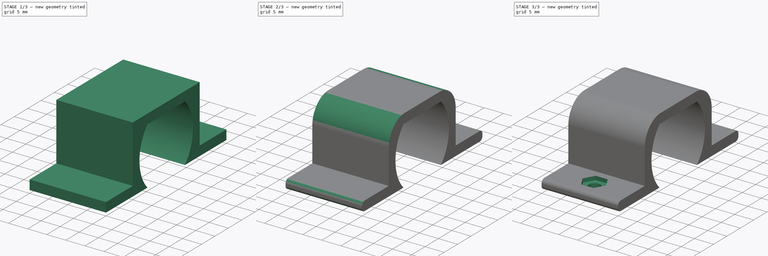
[diagram: build sequence overview — one tinted view per stage of 3, left to right]
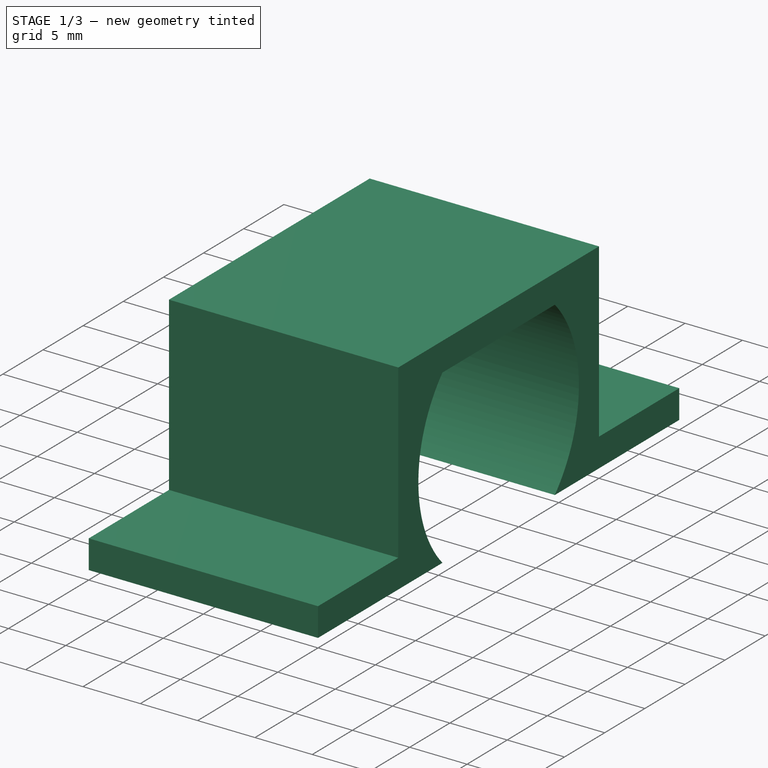
[diagram: stage 1 of 3 — iso view after this stage's code; geometry added in this stage tinted green]
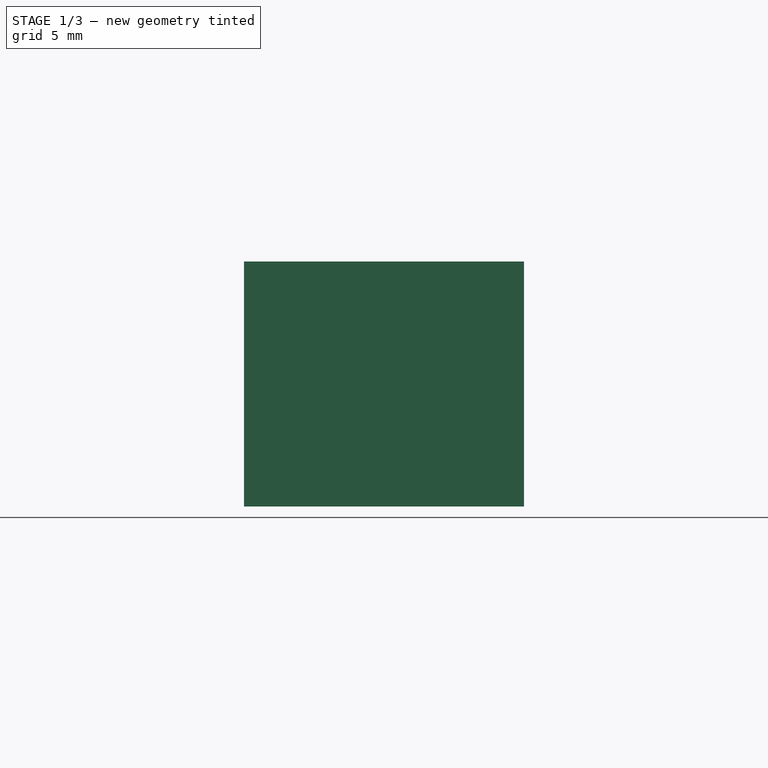
[diagram: stage 1 of 3 — front view after this stage's code; geometry added in this stage tinted green]
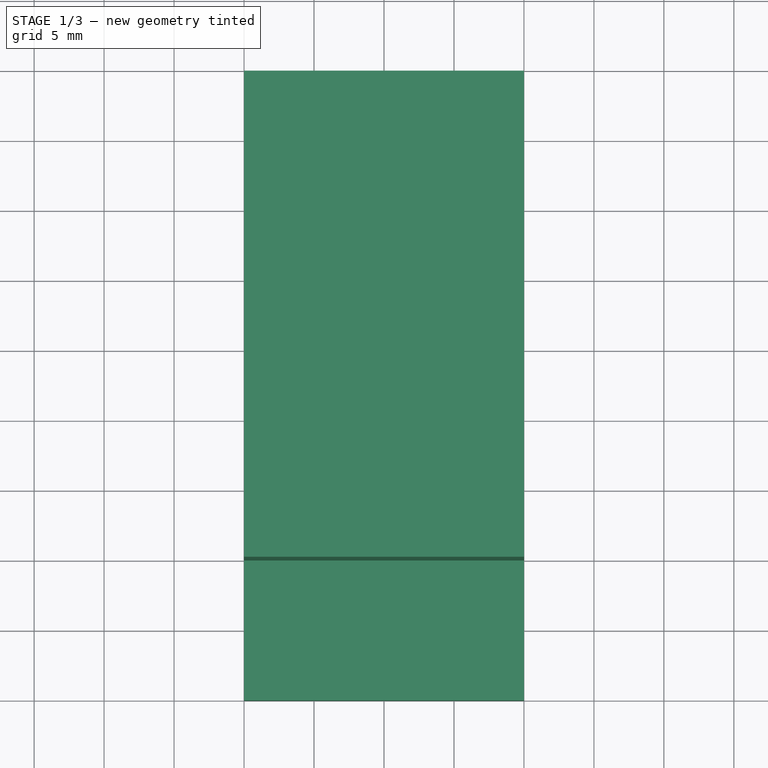
[diagram: stage 1 of 3 — top view after this stage's code; geometry added in this stage tinted green]
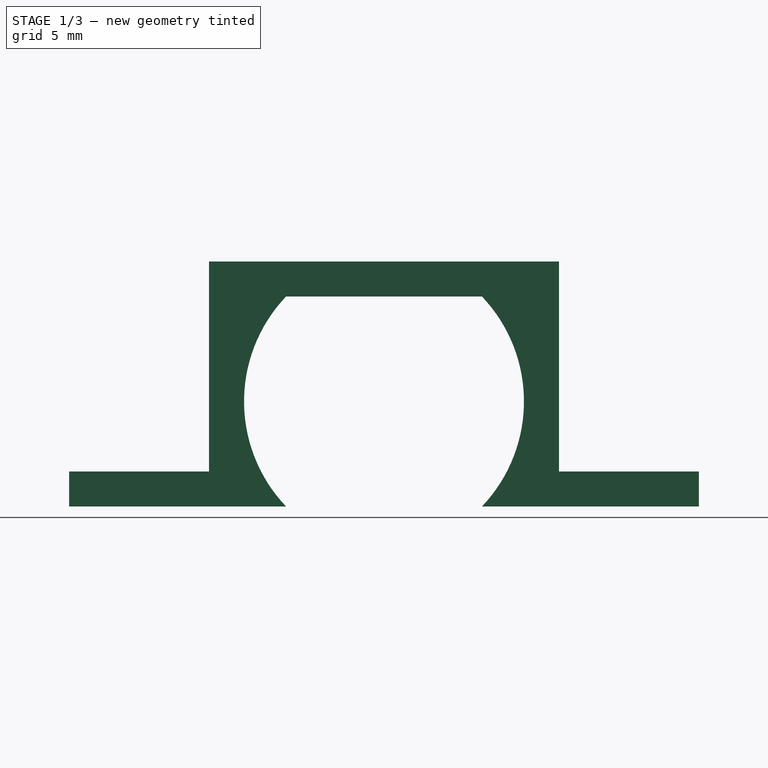
[diagram: stage 1 of 3 — right view after this stage's code; geometry added in this stage tinted green]
FCSTD DOCUMENT  (FreeCAD 1.0R39109 (Git))
Label: Ausweerfmotor-Befestigung
License: All rights reserved
LicenseURL: https://en.wikipedia.org/wiki/All_rights_reserved
objects: Sketcher::SketchObject×4, PartDesign::Pocket×3, PartDesign::Fillet×2, PartDesign::Pad×1, PartDesign::Body×1
note: 27 computed .brp shape members not serialized (recipe doc carries the construction recipe); baked Part::Feature solids carry a one-line shape summary decoded from their .brp

FEATURE [Sketcher::SketchObject] Sketch
  ArcFitTolerance = 1e-06
  AttachmentSupport = -> [YZ_Plane]
  FullyConstrained = true
  MakeInternals = false
  MapMode = 5
  Placement = pos=(0,0,0) rot=(0.57735,0.57735,0.57735;2.0944rad)
  sketch-geometry (8):
    g0: LineSegment StartX=0 StartY=0 StartZ=0 EndX=0 EndY=2.5 EndZ=0
    g1: LineSegment StartX=0 StartY=2.5 StartZ=0 EndX=10 EndY=2.5 EndZ=0
    g2: LineSegment StartX=10 StartY=2.5 StartZ=0 EndX=10 EndY=17.5 EndZ=0
    g3: LineSegment StartX=10 StartY=17.5 StartZ=0 EndX=35 EndY=17.5 EndZ=0
    g4: LineSegment StartX=35 StartY=17.5 StartZ=0 EndX=35 EndY=2.5 EndZ=0
    g5: LineSegment StartX=35 StartY=2.5 StartZ=0 EndX=45 EndY=2.5 EndZ=0
    g6: LineSegment StartX=45 StartY=2.5 StartZ=0 EndX=45 EndY=0 EndZ=0
    g7: LineSegment StartX=45 StartY=0 StartZ=0 EndX=0 EndY=0 EndZ=0
  constraints (22):
    c: Coincident(g-1,g0)
    c: PointOnObject(g0,g-2)
    c: Coincident(g0,g1)
    c: Horizontal(g1)
    c: Coincident(g1,g2)
    c: Vertical(g2)
    c: Coincident(g2,g3)
    c: Horizontal(g3)
    c: Coincident(g3,g4)
    c: Vertical(g4)
    c: Coincident(g4,g5)
    c: Coincident(g5,g6)
    c: PointOnObject(g6,g-1)
    c: Coincident(g6,g7)
    c: Coincident(g7,g0)
    c: Vertical(g6)
    c: DistanceX(g3,g3) = 25
    c: DistanceX(g1,g1) = 10
    c: Distance(g5,g5) = 10
    c: DistanceY(g6,g6) = 2.5
    c: Tangent(g1,g5)
    c: Distance(g7,g3) = 17.5
FEATURE [PartDesign::Pad] Pad
  Direction = (1,0,0)
  Length = 20
  Length2 = 10
  Placement = pos=(0,0,0) rot=(1,1,1;2.0944rad)
  Profile = -> Sketch
  ReferenceAxis = -> Sketch [N_Axis]
  Refine = true
  Suppressed = false
  Type = 0
FEATURE [Sketcher::SketchObject] Sketch001
  ArcFitTolerance = 1e-06
  AttachmentSupport = -> [Pad]
  FullyConstrained = true
  MakeInternals = false
  MapMode = 5
  Placement = pos=(20,0,0) rot=(0.57735,0.57735,0.57735;2.0944rad)
  sketch-geometry (9):
    g0: LineSegment StartX=15.5 StartY=15 StartZ=0 EndX=29.5 EndY=15 EndZ=0
    g1: LineSegment StartX=15.5 StartY=-1.95e-14 StartZ=0 EndX=29.5 EndY=-1.95e-14 EndZ=0
    g2: ArcOfCircle CenterX=21.625 CenterY=7.5 CenterZ=0 NormalX=0 NormalY=0 NormalZ=1 AngleXU=0 Radius=10.875 StartAngle=5.52217 EndAngle=7.0442
    g3: ArcOfCircle CenterX=23.375 CenterY=7.5 CenterZ=0 NormalX=0 NormalY=0 NormalZ=1 AngleXU=0 Radius=10.875 StartAngle=2.38058 EndAngle=3.90261
    g4: LineSegment [constr] StartX=15.5 StartY=15 StartZ=0 EndX=15.5 EndY=-1.95e-14 EndZ=0
    g5: LineSegment [constr] StartX=29.5 StartY=15 StartZ=0 EndX=29.5 EndY=-1.95e-14 EndZ=0
    g6: LineSegment [constr] StartX=15.5 StartY=15 StartZ=0 EndX=29.5 EndY=-1.95e-14 EndZ=0
    g7: LineSegment [constr] StartX=15.5 StartY=-1.95e-14 StartZ=0 EndX=29.5 EndY=15 EndZ=0
    g8: GeomPoint [constr] X=22.5 Y=7.5 Z=0
  constraints (23):
    c: Horizontal(g0)
    c: Horizontal(g1)
    c: Coincident(g2,g0)
    c: Coincident(g2,g1)
    c: Coincident(g3,g0)
    c: Coincident(g3,g1)
    c: Equal(g3,g2)
    c: Equal(g0,g1)
    c: DistanceX(g1,g1) = 14
    c: Distance(g1,g0) = 15
    c: Coincident(g4,g0)
    c: Coincident(g4,g1)
    c: Vertical(g4)
    c: Distance(g3,g4) = -3
    c: Coincident(g5,g0)
    c: Coincident(g5,g1)
    c: DistanceY(g-1,g3) = 7.5
    c: Coincident(g6,g0)
    c: Coincident(g6,g1)
    c: Coincident(g7,g1)
    c: Coincident(g7,g0)
    c: Symmetric(g7,g7,g8)
    c: DistanceX(g-1,g8) = 22.5
FEATURE [PartDesign::Pocket] Pocket
  BaseFeature = -> Pad
  Direction = (-1,0,0)
  Length = 5
  Length2 = 5
  Placement = pos=(0,0,0) rot=(1,1,1;2.0944rad)
  Profile = -> Sketch001
  ReferenceAxis = -> Sketch001 [N_Axis]
  Refine = true
  Suppressed = false
  Type = 1
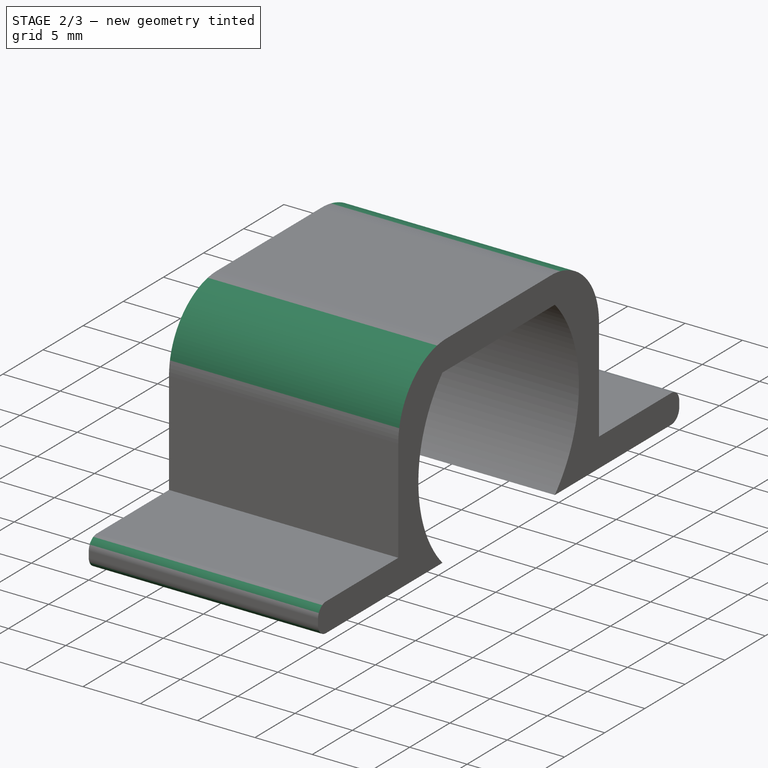
[diagram: stage 2 of 3 — iso view after this stage's code; geometry added in this stage tinted green]
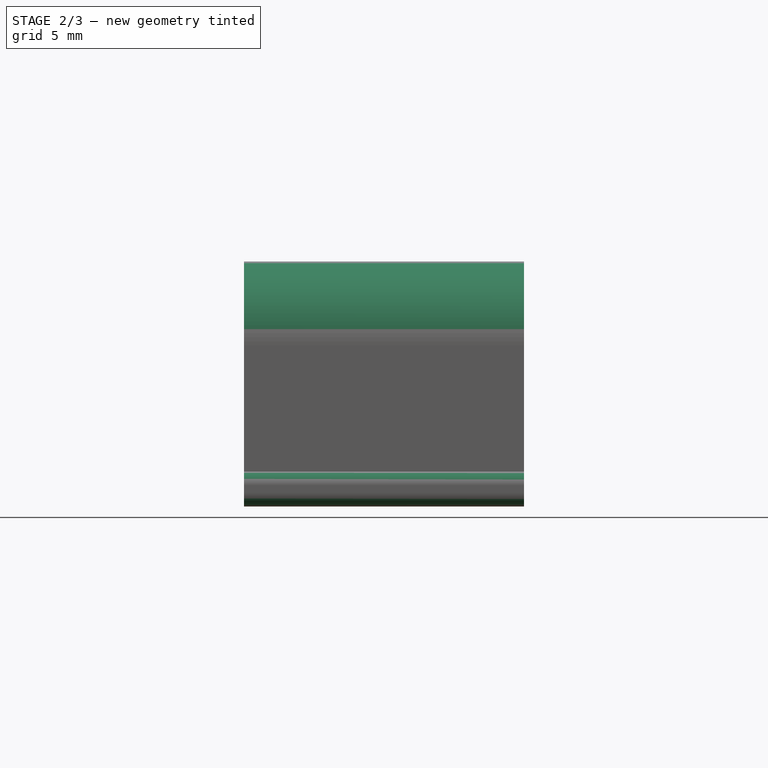
[diagram: stage 2 of 3 — front view after this stage's code; geometry added in this stage tinted green]
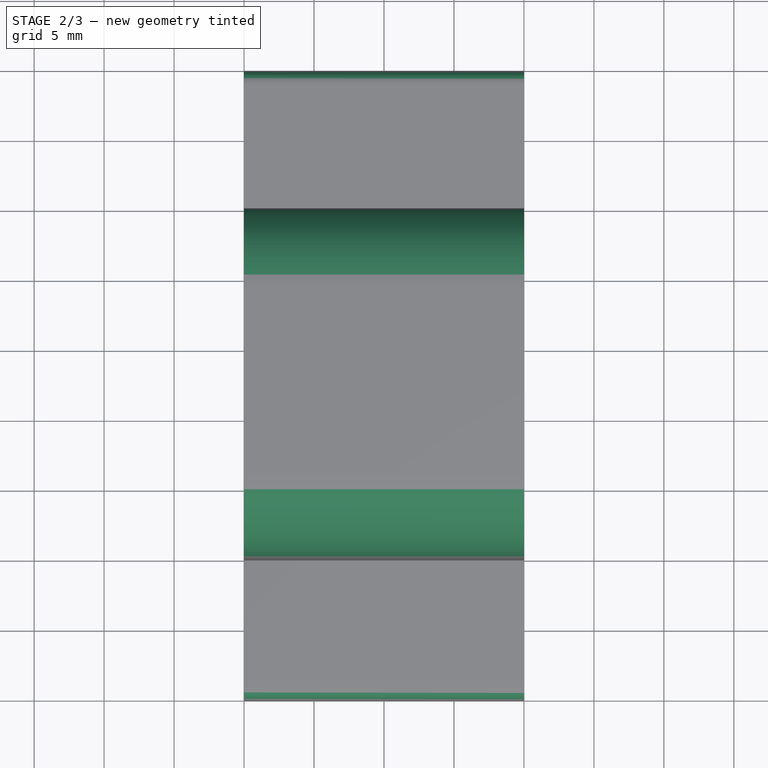
[diagram: stage 2 of 3 — top view after this stage's code; geometry added in this stage tinted green]
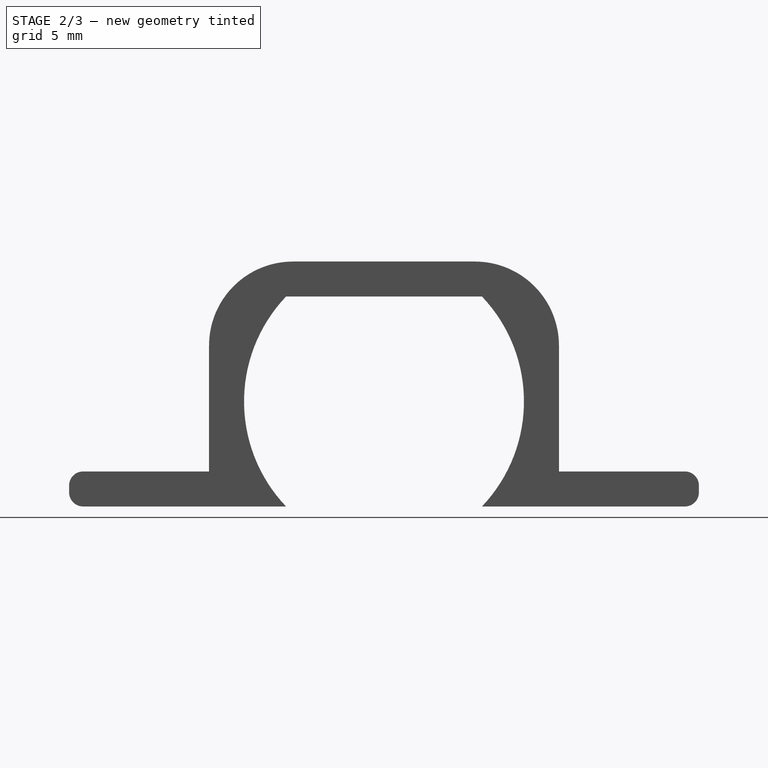
[diagram: stage 2 of 3 — right view after this stage's code; geometry added in this stage tinted green]
FEATURE [PartDesign::Fillet] Fillet
  Base = -> Pocket [Edge30,Edge31]
  BaseFeature = -> Pocket
  Placement = pos=(0,0,0) rot=(1,1,1;2.0944rad)
  Radius = 6
  Refine = true
  SupportTransform = false
  Suppressed = false
  UseAllEdges = false
FEATURE [PartDesign::Fillet] Fillet001
  Base = -> Fillet [Edge20,Edge24,Edge34,Edge38]
  BaseFeature = -> Fillet
  Placement = pos=(0,0,0) rot=(1,1,1;2.0944rad)
  Radius = 1
  Refine = true
  SupportTransform = false
  Suppressed = false
  UseAllEdges = false
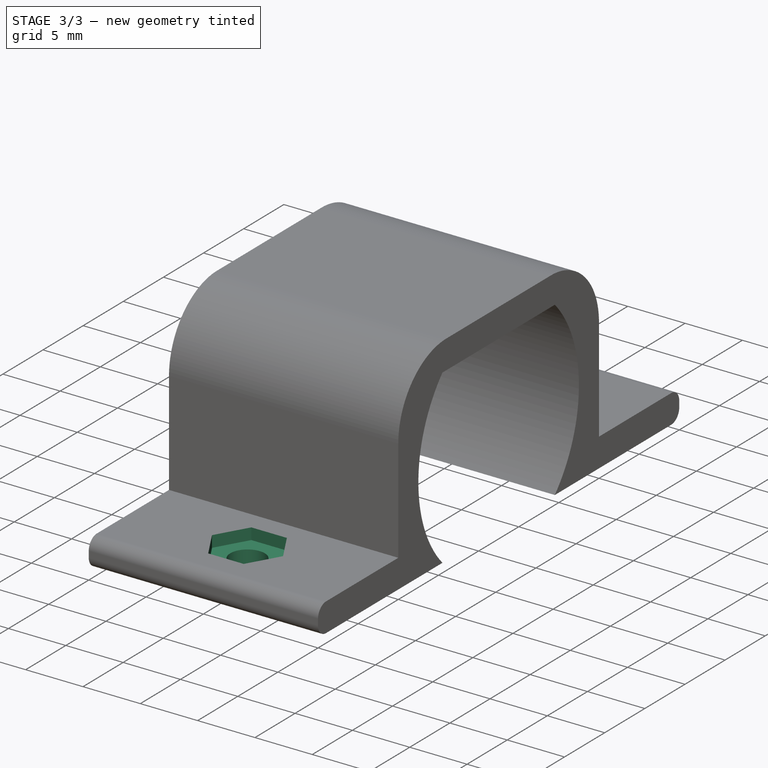
[diagram: stage 3 of 3 — iso view after this stage's code; geometry added in this stage tinted green]
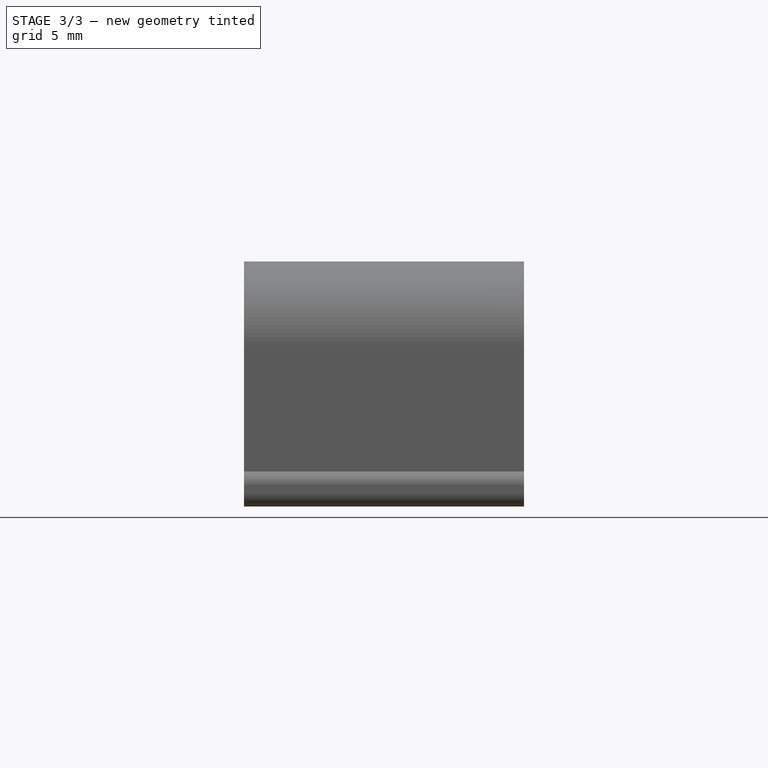
[diagram: stage 3 of 3 — front view after this stage's code; geometry added in this stage tinted green]
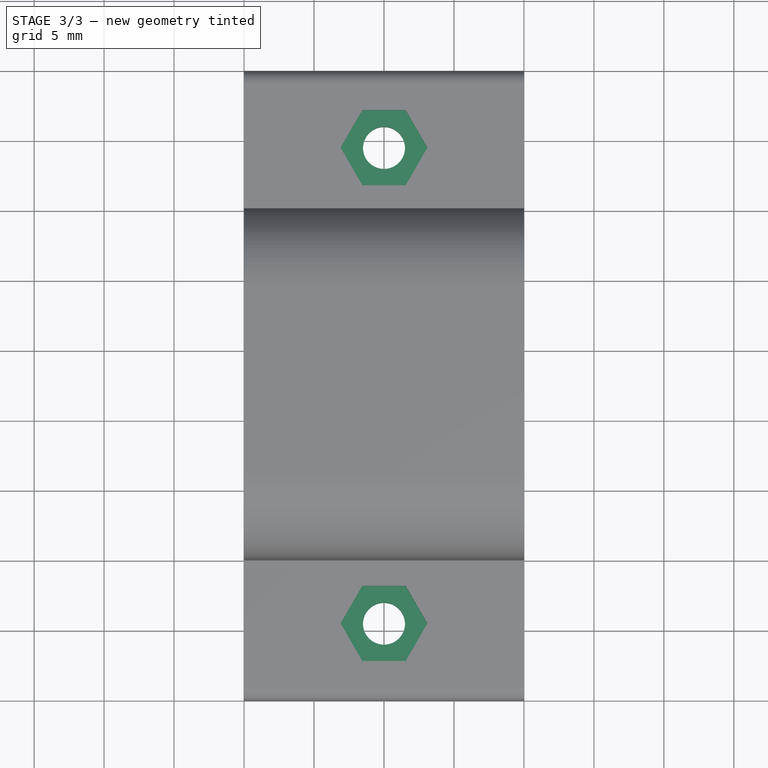
[diagram: stage 3 of 3 — top view after this stage's code; geometry added in this stage tinted green]
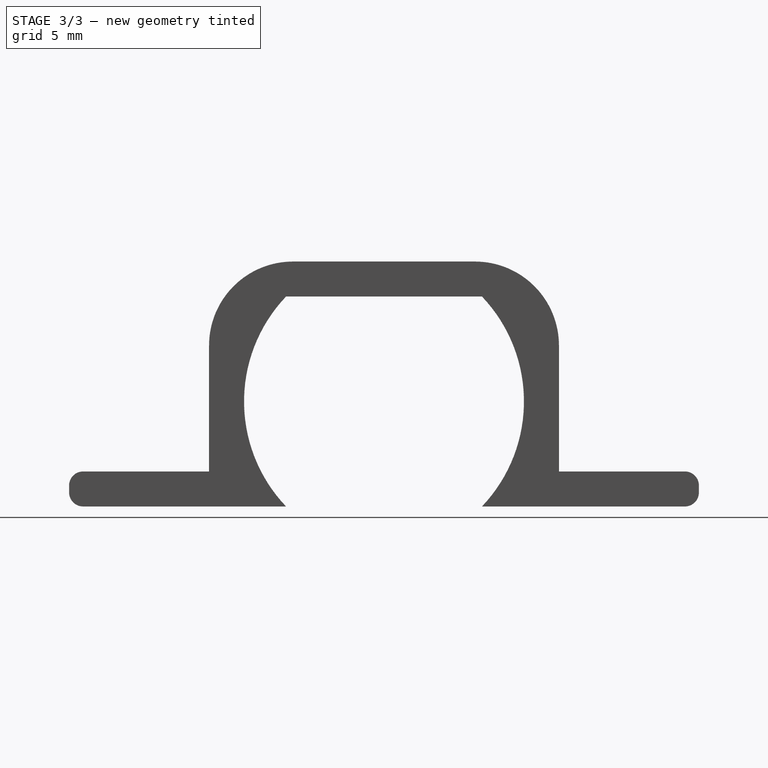
[diagram: stage 3 of 3 — right view after this stage's code; geometry added in this stage tinted green]
FEATURE [Sketcher::SketchObject] Sketch002
  ArcFitTolerance = 1e-06
  AttachmentSupport = -> [Fillet001]
  ExternalGeometry = -> [Fillet001]
  FullyConstrained = true
  MakeInternals = false
  MapMode = 5
  Placement = pos=(0,6e-16,2.5) rot=(0,0,-1;1.5708rad)
  sketch-geometry (16):
    g0: LineSegment [constr] StartX=-44 StartY=1.12e-14 StartZ=0 EndX=-35 EndY=20 EndZ=0
    g1: LineSegment [constr] StartX=-10 StartY=-2.3e-15 StartZ=0 EndX=-1 EndY=20 EndZ=0
    g2: LineSegment StartX=-36.8153 StartY=11.55 StartZ=0 EndX=-39.5 EndY=13.1 EndZ=0
    g3: LineSegment StartX=-39.5 StartY=13.1 StartZ=0 EndX=-42.1847 EndY=11.55 EndZ=0
    g4: LineSegment StartX=-42.1847 StartY=11.55 StartZ=0 EndX=-42.1847 EndY=8.45 EndZ=0
    g5: LineSegment StartX=-42.1847 StartY=8.45 StartZ=0 EndX=-39.5 EndY=6.9 EndZ=0
    g6: LineSegment StartX=-39.5 StartY=6.9 StartZ=0 EndX=-36.8153 EndY=8.45 EndZ=0
    g7: LineSegment StartX=-36.8153 StartY=8.45 StartZ=0 EndX=-36.8153 EndY=11.55 EndZ=0
    g8: Circle [constr] CenterX=-39.5 CenterY=10 CenterZ=0 NormalX=0 NormalY=0 NormalZ=1 AngleXU=0 Radius=3.1
    g9: LineSegment StartX=-2.81532 StartY=8.45 StartZ=0 EndX=-2.81532 EndY=11.55 EndZ=0
    g10: LineSegment StartX=-2.81532 StartY=11.55 StartZ=0 EndX=-5.5 EndY=13.1 EndZ=0
    g11: LineSegment StartX=-5.5 StartY=13.1 StartZ=0 EndX=-8.18468 EndY=11.55 EndZ=0
    g12: LineSegment StartX=-8.18468 StartY=11.55 StartZ=0 EndX=-8.18468 EndY=8.45 EndZ=0
    g13: LineSegment StartX=-8.18468 StartY=8.45 StartZ=0 EndX=-5.5 EndY=6.9 EndZ=0
    g14: LineSegment StartX=-5.5 StartY=6.9 StartZ=0 EndX=-2.81532 EndY=8.45 EndZ=0
    g15: Circle [constr] CenterX=-5.5 CenterY=10 CenterZ=0 NormalX=0 NormalY=0 NormalZ=1 AngleXU=0 Radius=3.1
  constraints (36):
    c: Coincident(g0,g-6)
    c: Coincident(g0,g-5)
    c: Coincident(g1,g-4)
    c: Coincident(g1,g-3)
    c: Coincident(g2,g3)
    c: Coincident(g3,g4)
    c: Coincident(g4,g5)
    c: Coincident(g5,g6)
    c: Coincident(g6,g7)
    c: Coincident(g7,g2)
    c: Equal(g2, g3-g7) x5
    c: PointOnObject(g2,g8)
    c: PointOnObject(g3,g8)
    c: PointOnObject(g4,g8)
    c: PointOnObject(g5,g8)
    c: PointOnObject(g6,g8)
    c: PointOnObject(g7,g8)
    c: Radius(g8) = 3.1
    c: Coincident(g9,g10)
    c: Coincident(g10,g11)
    c: Coincident(g11,g12)
    c: Coincident(g12,g13)
    c: Coincident(g13,g14)
    c: Coincident(g14,g9)
    c: Equal(g9, g10-g14) x5
    c: PointOnObject(g9,g15)
    c: PointOnObject(g10,g15)
    c: PointOnObject(g11,g15)
    c: PointOnObject(g12,g15)
    c: PointOnObject(g13,g15)
    c: PointOnObject(g14,g15)
    c: Radius(g15) = 3.1
    c: Symmetric(g1,g1,g15)
    c: Symmetric(g0,g0,g8)
    c: DistanceX(g0,g5) = 4.5
    c: DistanceX(g13,g1) = 4.5
FEATURE [PartDesign::Pocket] Pocket001
  BaseFeature = -> Fillet001
  Direction = (0,0,-1)
  Length = 1
  Length2 = 5
  Placement = pos=(0,0,0) rot=(1,1,1;2.0944rad)
  Profile = -> Sketch002
  ReferenceAxis = -> Sketch002 [N_Axis]
  Refine = true
  Suppressed = false
  Type = 0
FEATURE [Sketcher::SketchObject] Sketch003
  ArcFitTolerance = 1e-06
  AttachmentSupport = -> [Pocket001]
  ExternalGeometry = -> [Pocket001]
  FullyConstrained = true
  MakeInternals = false
  MapMode = 5
  Placement = pos=(0,0,1.5) rot=(0,0,-1;1.5708rad)
  sketch-geometry (4):
    g0: LineSegment [constr] StartX=-44 StartY=9.8e-15 StartZ=0 EndX=-35 EndY=20 EndZ=0
    g1: LineSegment [constr] StartX=-1 StartY=20 StartZ=0 EndX=-10 EndY=-7.1e-15 EndZ=0
    g2: Circle CenterX=-39.5 CenterY=10 CenterZ=0 NormalX=0 NormalY=0 NormalZ=1 AngleXU=0 Radius=1.5
    g3: Circle CenterX=-5.5 CenterY=10 CenterZ=0 NormalX=0 NormalY=0 NormalZ=1 AngleXU=0 Radius=1.5
  constraints (8):
    c: Coincident(g0,g-5)
    c: Coincident(g0,g-6)
    c: Coincident(g1,g-3)
    c: Coincident(g1,g-4)
    c: Diameter(g2) = 3
    c: Symmetric(g0,g0,g2)
    c: Diameter(g3) = 3
    c: Symmetric(g1,g1,g3)
FEATURE [PartDesign::Pocket] Pocket002
  BaseFeature = -> Pocket001
  Direction = (0,0,-1)
  Length = 5
  Length2 = 5
  Placement = pos=(0,0,0) rot=(1,1,1;2.0944rad)
  Profile = -> Sketch003
  ReferenceAxis = -> Sketch003 [N_Axis]
  Refine = true
  Suppressed = false
  Type = 1
FEATURE [PartDesign::Body] Body  label="Körper"
  AllowCompound = false
  Group = -> [Sketch,Pad,Sketch001,Pocket,Fillet,Fillet001,Sketch002,Pocket001,Sketch003,Pocket002]
  Origin = -> Origin
  Placement = pos=(0,0,0) rot=(0,1,0;1.5708rad)
  Tip = -> Pocket002
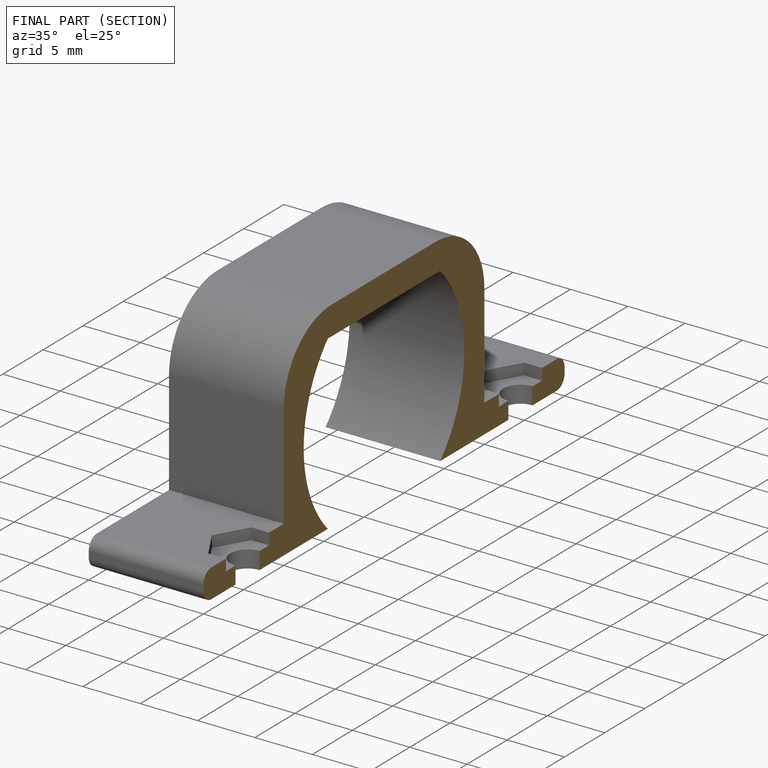
[diagram: finished part — half-section view (interior)]
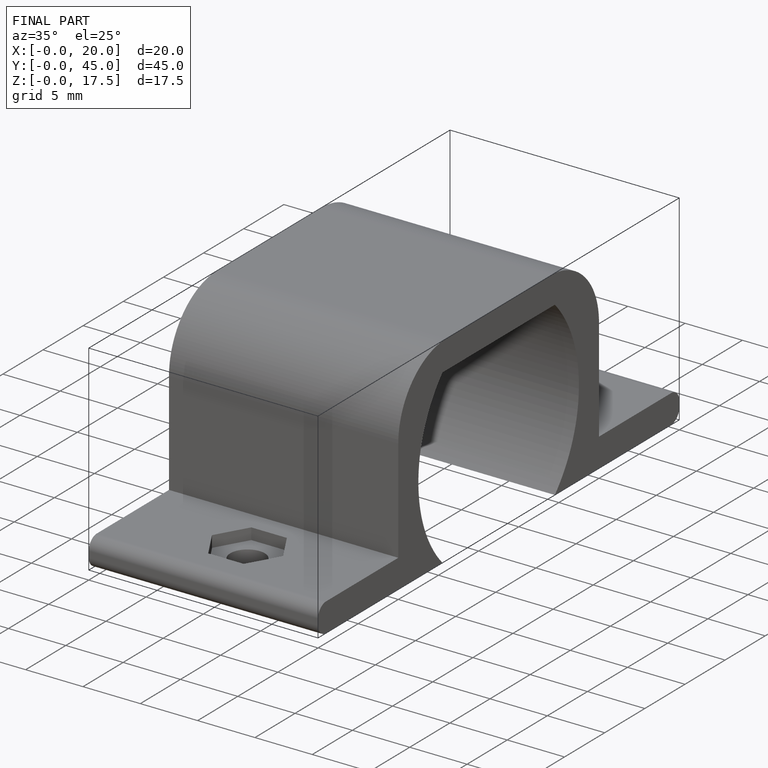
[diagram: finished part — iso view with bounding-box wireframe]
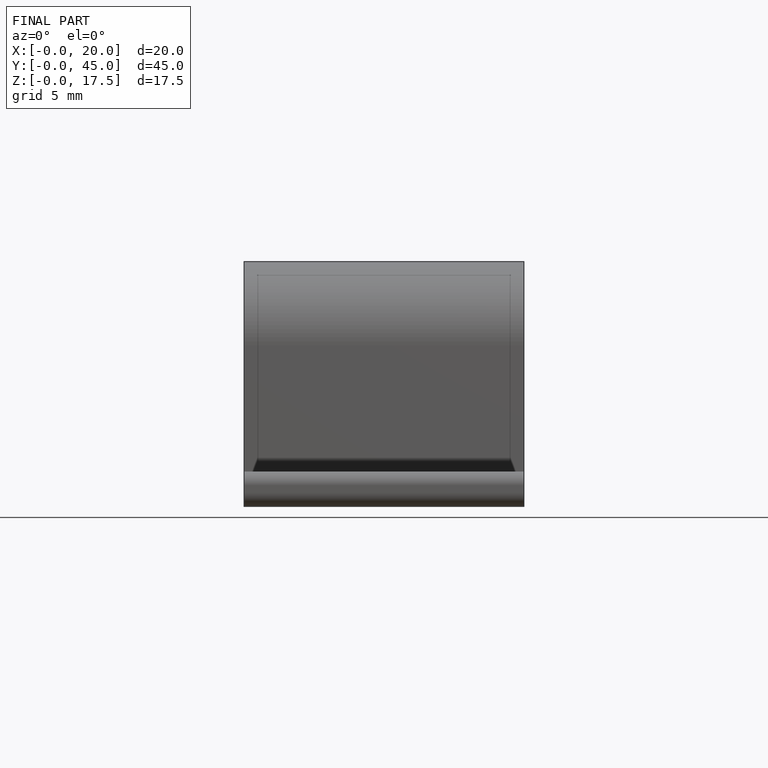
[diagram: finished part — front view with bounding-box wireframe]
